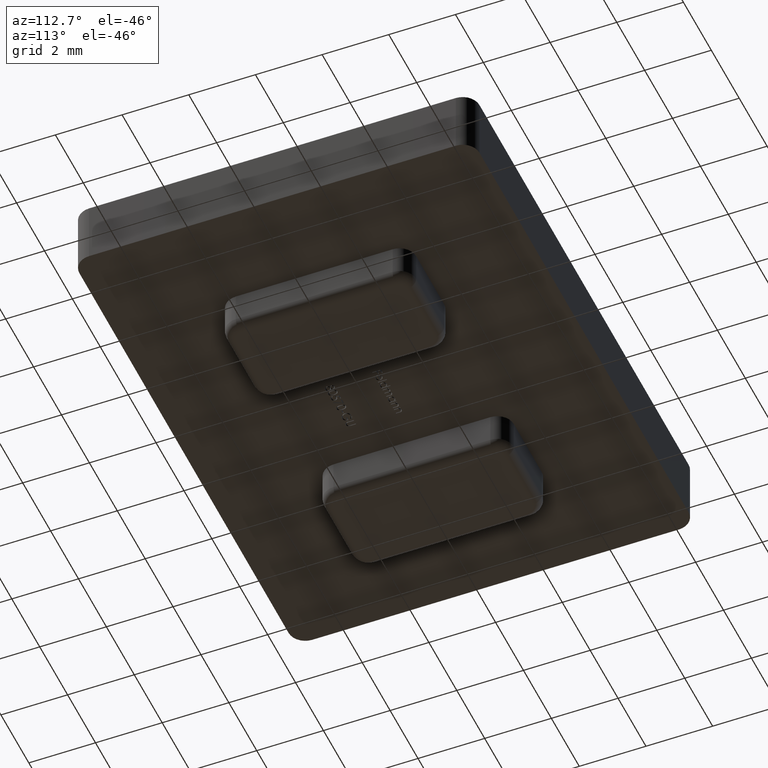
[diagram: clean part render]
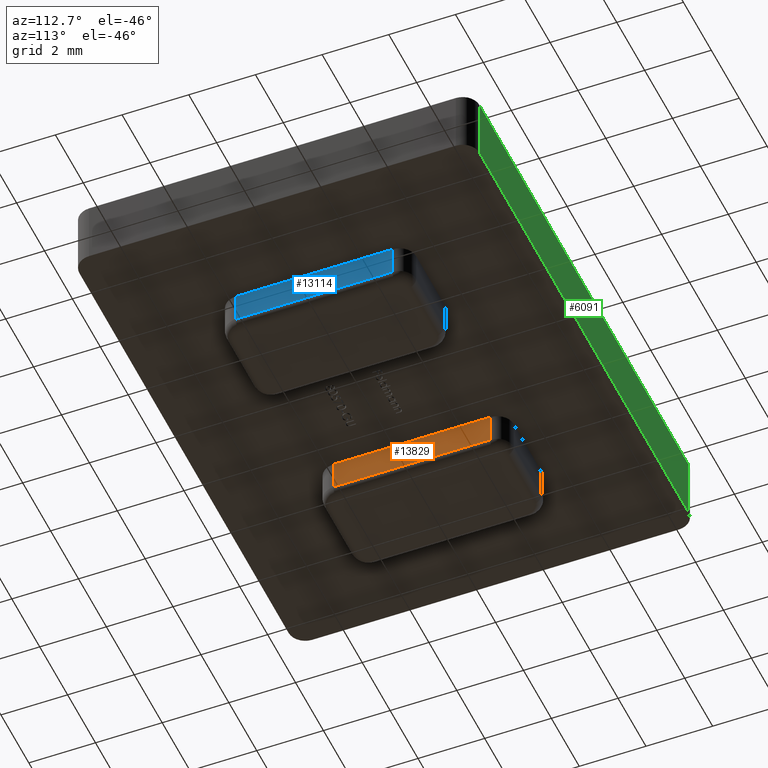
[diagram: same view with three faces highlighted in distinct colors, each labeled with its STEP entity id]
A machine part, auxiliary view with three faces highlighted in distinct colors.
Their STEP definitions:

[orange] entity #13829 — the highlighted planar face has unit normal (-1, 0, -0).
#46 = DIRECTION ( 'NONE',  ( 0.0000000000000000000, -1.000000000000000000, 0.0000000000000000000 ) ) ;
#407 = VERTEX_POINT ( 'NONE', #4716 ) ;
#563 = DIRECTION ( 'NONE',  ( -0.0000000000000000000, 1.000000000000000000, -0.0000000000000000000 ) ) ;
#685 = ORIENTED_EDGE ( 'NONE', *, *, #5747, .T. ) ;
#726 = CARTESIAN_POINT ( 'NONE',  ( -2.000000000000000000, -2.350000000000000100, 0.0000000000000000000 ) ) ;
#745 = ORIENTED_EDGE ( 'NONE', *, *, #2619, .T. ) ;
#975 = CARTESIAN_POINT ( 'NONE',  ( -2.000000000000000000, 2.849999999999999600, -1.200000000000000000 ) ) ;
#1081 = VERTEX_POINT ( 'NONE', #2677 ) ;
#1546 = CARTESIAN_POINT ( 'NONE',  ( -2.000000000000000000, 2.349999999999999600, -0.9000000000000000200 ) ) ;
#1687 = VECTOR ( 'NONE', #13442, 1000.000000000000000 ) ;
#2619 = EDGE_CURVE ( 'NONE', #7572, #1081, #13524, .T. ) ;
#2677 = CARTESIAN_POINT ( 'NONE',  ( -2.000000000000000000, 2.349999999999999600, 0.0000000000000000000 ) ) ;
#2701 = VECTOR ( 'NONE', #563, 1000.000000000000000 ) ;
#4100 = EDGE_CURVE ( 'NONE', #1081, #11010, #10659, .T. ) ;
#4716 = CARTESIAN_POINT ( 'NONE',  ( -2.000000000000000000, -2.350000000000000100, -0.9000000000000000200 ) ) ;
#5382 = DIRECTION ( 'NONE',  ( -1.000000000000000000, 0.0000000000000000000, -0.0000000000000000000 ) ) ;
#5747 = EDGE_CURVE ( 'NONE', #407, #7572, #11646, .T. ) ;
#6467 = EDGE_CURVE ( 'NONE', #11010, #407, #10630, .T. ) ;
#6707 = AXIS2_PLACEMENT_3D ( 'NONE', #975, #5382, #12944 ) ;
#6893 = CARTESIAN_POINT ( 'NONE',  ( -2.000000000000000000, -2.350000000000000100, -1.200000000000000000 ) ) ;
#7464 = FACE_OUTER_BOUND ( 'NONE', #12630, .T. ) ;
#7572 = VERTEX_POINT ( 'NONE', #10345 ) ;
#7686 = DIRECTION ( 'NONE',  ( 0.0000000000000000000, 0.0000000000000000000, 1.000000000000000000 ) ) ;
#7763 = VECTOR ( 'NONE', #46, 1000.000000000000000 ) ;
#8443 = CARTESIAN_POINT ( 'NONE',  ( -2.000000000000000000, 2.849999999999999600, 0.0000000000000000000 ) ) ;
#10345 = CARTESIAN_POINT ( 'NONE',  ( -2.000000000000000000, 2.349999999999999600, -0.9000000000000000200 ) ) ;
#10630 = LINE ( 'NONE', #6893, #1687 ) ;
#10658 = VECTOR ( 'NONE', #7686, 1000.000000000000000 ) ;
#10659 = LINE ( 'NONE', #8443, #7763 ) ;
#10771 = PLANE ( 'NONE',  #6707 ) ;
#11010 = VERTEX_POINT ( 'NONE', #726 ) ;
#11646 = LINE ( 'NONE', #1546, #2701 ) ;
#11910 = CARTESIAN_POINT ( 'NONE',  ( -2.000000000000000000, 2.349999999999999600, -1.200000000000000000 ) ) ;
#11926 = ORIENTED_EDGE ( 'NONE', *, *, #4100, .T. ) ;
#12432 = ORIENTED_EDGE ( 'NONE', *, *, #6467, .T. ) ;
#12630 = EDGE_LOOP ( 'NONE', ( #12432, #685, #745, #11926 ) ) ;
#12944 = DIRECTION ( 'NONE',  ( -0.0000000000000000000, 0.0000000000000000000, 1.000000000000000000 ) ) ;
#13442 = DIRECTION ( 'NONE',  ( -0.0000000000000000000, -0.0000000000000000000, -1.000000000000000000 ) ) ;
#13524 = LINE ( 'NONE', #11910, #10658 ) ;
#13829 = ADVANCED_FACE ( 'NONE', ( #7464 ), #10771, .F. ) ;

[blue] entity #13114 — the highlighted planar face has unit normal (-1, 0, -0).
#564 = CARTESIAN_POINT ( 'NONE',  ( 5.000000000000000000, 2.849999999999999600, 0.0000000000000000000 ) ) ;
#632 = EDGE_CURVE ( 'NONE', #6530, #8566, #7942, .T. ) ;
#1057 = ORIENTED_EDGE ( 'NONE', *, *, #3190, .T. ) ;
#1302 = CARTESIAN_POINT ( 'NONE',  ( 5.000000000000000000, 2.349999999999999600, 0.0000000000000000000 ) ) ;
#1453 = ORIENTED_EDGE ( 'NONE', *, *, #632, .T. ) ;
#2119 = CARTESIAN_POINT ( 'NONE',  ( 5.000000000000000000, 2.849999999999999600, -1.200000000000000000 ) ) ;
#2196 = DIRECTION ( 'NONE',  ( -0.0000000000000000000, 1.000000000000000000, -0.0000000000000000000 ) ) ;
#2952 = EDGE_CURVE ( 'NONE', #8566, #12637, #3385, .T. ) ;
#3190 = EDGE_CURVE ( 'NONE', #12637, #13625, #7916, .T. ) ;
#3385 = LINE ( 'NONE', #564, #10314 ) ;
#3832 = AXIS2_PLACEMENT_3D ( 'NONE', #2119, #5550, #4404 ) ;
#3892 = CARTESIAN_POINT ( 'NONE',  ( 5.000000000000000000, 2.349999999999999600, -0.9000000000000000200 ) ) ;
#4206 = LINE ( 'NONE', #10926, #6400 ) ;
#4404 = DIRECTION ( 'NONE',  ( -0.0000000000000000000, 0.0000000000000000000, 1.000000000000000000 ) ) ;
#5058 = ORIENTED_EDGE ( 'NONE', *, *, #5548, .T. ) ;
#5548 = EDGE_CURVE ( 'NONE', #13625, #6530, #4206, .T. ) ;
#5550 = DIRECTION ( 'NONE',  ( -1.000000000000000000, 0.0000000000000000000, -0.0000000000000000000 ) ) ;
#6400 = VECTOR ( 'NONE', #2196, 1000.000000000000000 ) ;
#6530 = VERTEX_POINT ( 'NONE', #3892 ) ;
#7916 = LINE ( 'NONE', #10103, #11658 ) ;
#7942 = LINE ( 'NONE', #10244, #8468 ) ;
#8012 = DIRECTION ( 'NONE',  ( 0.0000000000000000000, -1.000000000000000000, -0.0000000000000000000 ) ) ;
#8321 = FACE_OUTER_BOUND ( 'NONE', #9293, .T. ) ;
#8468 = VECTOR ( 'NONE', #12410, 1000.000000000000000 ) ;
#8566 = VERTEX_POINT ( 'NONE', #1302 ) ;
#9149 = CARTESIAN_POINT ( 'NONE',  ( 5.000000000000000000, -2.350000000000000100, -0.9000000000000000200 ) ) ;
#9293 = EDGE_LOOP ( 'NONE', ( #1057, #5058, #1453, #13387 ) ) ;
#10003 = DIRECTION ( 'NONE',  ( -0.0000000000000000000, -0.0000000000000000000, -1.000000000000000000 ) ) ;
#10103 = CARTESIAN_POINT ( 'NONE',  ( 5.000000000000000000, -2.350000000000000100, -1.200000000000000000 ) ) ;
#10244 = CARTESIAN_POINT ( 'NONE',  ( 5.000000000000000000, 2.349999999999999600, -1.200000000000000000 ) ) ;
#10314 = VECTOR ( 'NONE', #8012, 1000.000000000000000 ) ;
#10926 = CARTESIAN_POINT ( 'NONE',  ( 5.000000000000000000, 2.349999999999999600, -0.9000000000000000200 ) ) ;
#11105 = CARTESIAN_POINT ( 'NONE',  ( 5.000000000000000000, -2.350000000000000100, 0.0000000000000000000 ) ) ;
#11658 = VECTOR ( 'NONE', #10003, 1000.000000000000000 ) ;
#12410 = DIRECTION ( 'NONE',  ( 0.0000000000000000000, 0.0000000000000000000, 1.000000000000000000 ) ) ;
#12637 = VERTEX_POINT ( 'NONE', #11105 ) ;
#13113 = PLANE ( 'NONE',  #3832 ) ;
#13114 = ADVANCED_FACE ( 'NONE', ( #8321 ), #13113, .F. ) ;
#13387 = ORIENTED_EDGE ( 'NONE', *, *, #2952, .T. ) ;
#13625 = VERTEX_POINT ( 'NONE', #9149 ) ;

[green] entity #6091 — the highlighted planar face has unit normal (0, -1, 0).
#550 = DIRECTION ( 'NONE',  ( 0.0000000000000000000, -0.0000000000000000000, -1.000000000000000000 ) ) ;
#810 = EDGE_CURVE ( 'NONE', #1571, #3043, #2233, .T. ) ;
#1466 = CARTESIAN_POINT ( 'NONE',  ( -7.999999999999998200, 6.000000000000000000, 1.899999999999999900 ) ) ;
#1571 = VERTEX_POINT ( 'NONE', #9528 ) ;
#1662 = DIRECTION ( 'NONE',  ( 0.0000000000000000000, -1.000000000000000000, 0.0000000000000000000 ) ) ;
#1802 = CARTESIAN_POINT ( 'NONE',  ( -7.499999999999999100, 6.000000000000000000, 0.0000000000000000000 ) ) ;
#2233 = LINE ( 'NONE', #9423, #3239 ) ;
#3043 = VERTEX_POINT ( 'NONE', #8575 ) ;
#3239 = VECTOR ( 'NONE', #10489, 1000.000000000000000 ) ;
#3357 = LINE ( 'NONE', #12598, #7215 ) ;
#4043 = FACE_OUTER_BOUND ( 'NONE', #8819, .T. ) ;
#4849 = PLANE ( 'NONE',  #8089 ) ;
#5115 = EDGE_CURVE ( 'NONE', #3043, #12923, #12681, .T. ) ;
#5861 = DIRECTION ( 'NONE',  ( -1.000000000000000000, -0.0000000000000000000, -0.0000000000000000000 ) ) ;
#6091 = ADVANCED_FACE ( 'NONE', ( #4043 ), #4849, .F. ) ;
#6316 = ORIENTED_EDGE ( 'NONE', *, *, #810, .T. ) ;
#7140 = CARTESIAN_POINT ( 'NONE',  ( -7.999999999999998200, 6.000000000000000000, 1.899999999999999900 ) ) ;
#7215 = VECTOR ( 'NONE', #11603, 1000.000000000000000 ) ;
#7604 = DIRECTION ( 'NONE',  ( -1.000000000000000000, -0.0000000000000000000, -0.0000000000000000000 ) ) ;
#8023 = ORIENTED_EDGE ( 'NONE', *, *, #5115, .T. ) ;
#8089 = AXIS2_PLACEMENT_3D ( 'NONE', #7140, #1662, #550 ) ;
#8173 = ORIENTED_EDGE ( 'NONE', *, *, #10657, .F. ) ;
#8575 = CARTESIAN_POINT ( 'NONE',  ( 7.500000000000001800, 6.000000000000000000, 0.0000000000000000000 ) ) ;
#8745 = CARTESIAN_POINT ( 'NONE',  ( -7.999999999999998200, 6.000000000000000000, 0.0000000000000000000 ) ) ;
#8814 = EDGE_CURVE ( 'NONE', #12923, #12653, #3357, .T. ) ;
#8819 = EDGE_LOOP ( 'NONE', ( #8023, #9263, #8173, #6316 ) ) ;
#9018 = VECTOR ( 'NONE', #5861, 1000.000000000000000 ) ;
#9263 = ORIENTED_EDGE ( 'NONE', *, *, #8814, .T. ) ;
#9423 = CARTESIAN_POINT ( 'NONE',  ( 7.500000000000001800, 6.000000000000000000, 1.899999999999999900 ) ) ;
#9528 = CARTESIAN_POINT ( 'NONE',  ( 7.500000000000001800, 6.000000000000000000, 1.899999999999999900 ) ) ;
#9960 = CARTESIAN_POINT ( 'NONE',  ( -7.499999999999999100, 6.000000000000000000, 1.899999999999999900 ) ) ;
#10489 = DIRECTION ( 'NONE',  ( 0.0000000000000000000, 0.0000000000000000000, -1.000000000000000000 ) ) ;
#10657 = EDGE_CURVE ( 'NONE', #1571, #12653, #11917, .T. ) ;
#11603 = DIRECTION ( 'NONE',  ( -0.0000000000000000000, -0.0000000000000000000, 1.000000000000000000 ) ) ;
#11917 = LINE ( 'NONE', #1466, #9018 ) ;
#12598 = CARTESIAN_POINT ( 'NONE',  ( -7.499999999999999100, 6.000000000000000000, 1.899999999999999900 ) ) ;
#12653 = VERTEX_POINT ( 'NONE', #9960 ) ;
#12681 = LINE ( 'NONE', #8745, #13179 ) ;
#12923 = VERTEX_POINT ( 'NONE', #1802 ) ;
#13179 = VECTOR ( 'NONE', #7604, 1000.000000000000000 ) ;